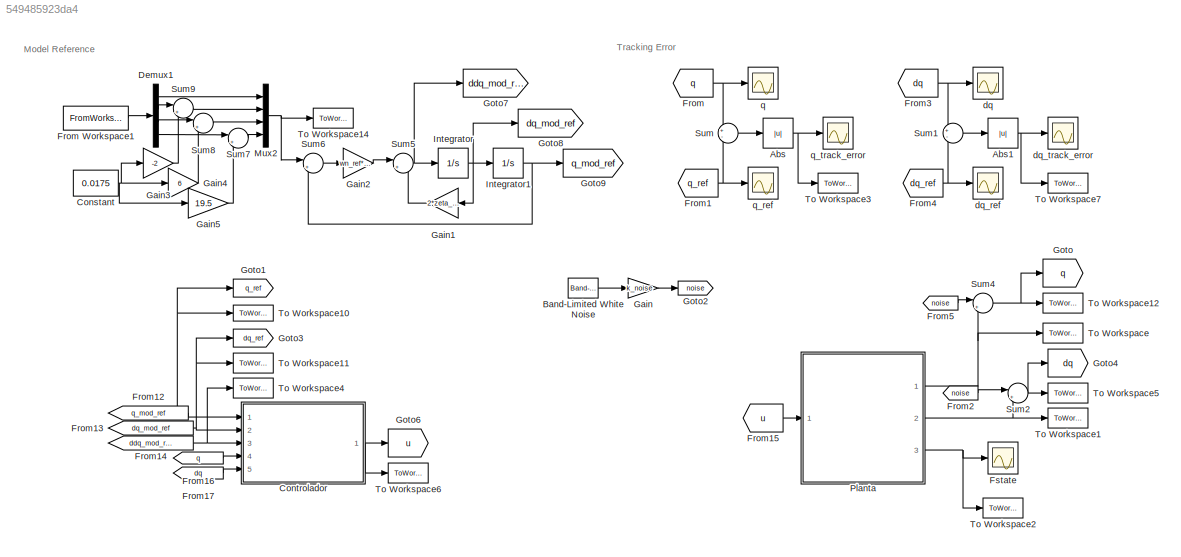
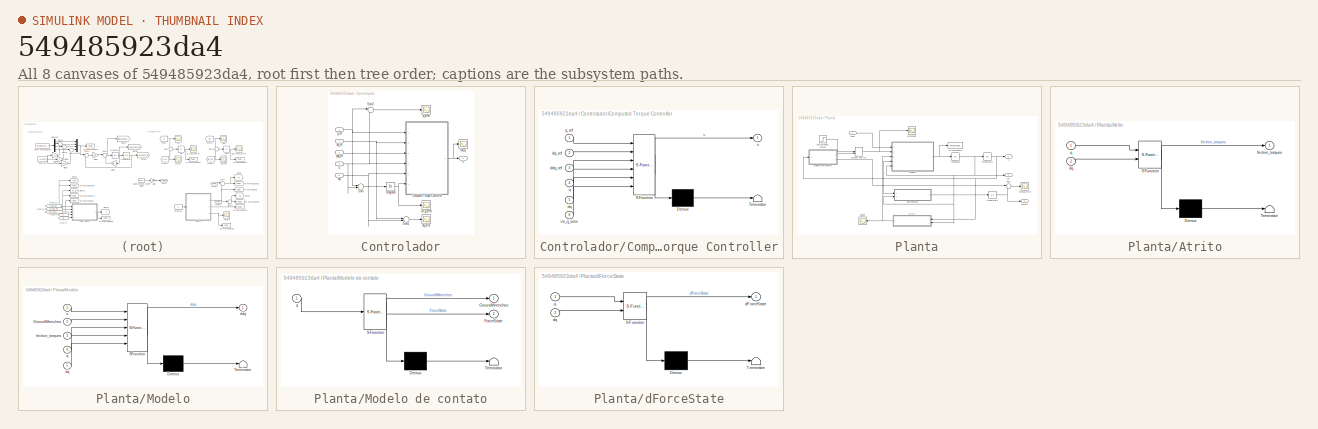
[diagram: thumbnail index - all 8 canvases of the model, root first then tree order]
MODEL slx_549485923da4
KIND model
CONFIG AbsTol = auto
CONFIG EnableMultiTasking = on
CONFIG FixedStep = simulation_step
CONFIG MaxStep = 1e-2
CONFIG MinStep = auto
CONFIG RelTol = 1e-3
CONFIG SampleTimeConstraint = Unconstrained
CONFIG Solver = FixedStepAuto
CONFIG SolverName = FixedStepAuto
CONFIG StartTime = 0.0
CONFIG StopTime = 1
BLOCK [Abs] Abs
  SaturateOnIntegerOverflow = off
BLOCK [Abs] Abs1
  SaturateOnIntegerOverflow = off
BLOCK [Reference] Band-Limited White Noise  REF=simulink/Sources/Band-Limited
White Noise
  Ports = [0, 1]
  SourceBlock = simulink/Sources/Band-Limited\nWhite Noise
  SourceProductBaseCode = SL
  SourceProductName = Simulink
  SourceType = Band-Limited White Noise.
BLOCK [Constant] Constant
  Value = 0.0175
BLOCK [SubSystem] Controlador
  Ports = [5, 1]
  RequestExecContextInheritance = off
  Variant = off
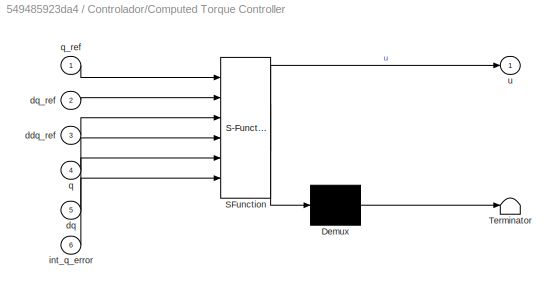
BLOCK [SubSystem] Controlador/Computed Torque Controller
  ErrorFcn = Stateflow.Translate.translate
  PermitHierarchicalResolution = ExplicitOnly
  Ports = [6, 1]
  RequestExecContextInheritance = off
  SFBlockType = MATLAB Function
  TreatAsAtomicUnit = on
  Variant = off
BLOCK [Demux] Controlador/Computed Torque Controller/ Demux 
  Outputs = 1
  Ports = [1, 1]
BLOCK [S-Function] Controlador/Computed Torque Controller/ SFunction 
  EnableBusSupport = on
  FunctionName = sf_sfun
  Parameters = G_ctrl,Inertia_ctrl,Kd,Ki,Kp,L_ctrl,Mass_ctrl,R_ctrl,h_ctrl,joint_type
  PortCounts = [6 2]
  Ports = [6, 2]
  SFcnIsStateOwnerBlock = off
  SFunctionDeploymentMode = off
  Tag = Stateflow S-Function simulation_state2017a 1
BLOCK [Terminator] Controlador/Computed Torque Controller/ Terminator 
BLOCK [Inport] Controlador/Computed Torque Controller/ddq_ref
  IconDisplay = Port number
  Port = 3
BLOCK [Inport] Controlador/Computed Torque Controller/dq
  IconDisplay = Port number
  Port = 5
BLOCK [Inport] Controlador/Computed Torque Controller/dq_ref
  IconDisplay = Port number
  Port = 2
BLOCK [Inport] Controlador/Computed Torque Controller/int_q_error
  IconDisplay = Port number
  Port = 6
BLOCK [Inport] Controlador/Computed Torque Controller/q
  IconDisplay = Port number
  Port = 4
BLOCK [Inport] Controlador/Computed Torque Controller/q_ref
  IconDisplay = Port number
BLOCK [Outport] Controlador/Computed Torque Controller/u
  IconDisplay = Port number
BLOCK [Integrator] Controlador/Integrator
  InitialCondition = zeros(4,1)
  Ports = [1, 1]
BLOCK [Sum] Controlador/Sum
  IconShape = round
  InputSameDT = off
  Inputs = |+-
  OutDataTypeStr = Inherit: Inherit via internal rule
  Ports = [2, 1]
  SaturateOnIntegerOverflow = off
BLOCK [Sum] Controlador/Sum1
  IconShape = round
  InputSameDT = off
  Inputs = |+-
  OutDataTypeStr = Inherit: Inherit via internal rule
  Ports = [2, 1]
  SaturateOnIntegerOverflow = off
BLOCK [Sum] Controlador/Sum2
  IconShape = round
  InputSameDT = off
  Inputs = |+-
  OutDataTypeStr = Inherit: Inherit via internal rule
  Ports = [2, 1]
  SaturateOnIntegerOverflow = off
BLOCK [Inport] Controlador/ddq_ref
  IconDisplay = Port number
  Port = 3
BLOCK [Inport] Controlador/dq
  IconDisplay = Port number
  Port = 5
BLOCK [Scope] Controlador/dq_error
  NumInputPorts = 1
  Ports = [1]
  ScopeSpecificationString = Simulink.scopes.TimeScopeBlockCfg('CurrentConfiguration', extmgr.ConfigurationSet(extmgr.Configuration('Core','General UI',true),extmgr.Configuration('Core','Source UI',true),extmgr.Configuration('Sources','WiredSimulink',true,'DataLoggingVariableName','ScopeData3','DataLoggingLimitDataPoints',true,'DataLoggingSaveFormat','Array','DataLoggingDecimation','1','DataLoggingDecimateData',true),extmgr.C...<+898ch>
BLOCK [Inport] Controlador/dq_ref
  IconDisplay = Port number
  Port = 2
BLOCK [Scope] Controlador/int_q_error
  NumInputPorts = 1
  Ports = [1]
  ScopeSpecificationString = Simulink.scopes.TimeScopeBlockCfg('CurrentConfiguration', extmgr.ConfigurationSet(extmgr.Configuration('Core','General UI',true),extmgr.Configuration('Core','Source UI',true),extmgr.Configuration('Sources','WiredSimulink',true,'DataLoggingVariableName','ScopeData2','DataLoggingLimitDataPoints',true,'DataLoggingSaveFormat','Array','DataLoggingDecimation','1','DataLoggingDecimateData',true),extmgr.C...<+1741ch>
BLOCK [Inport] Controlador/q
  IconDisplay = Port number
  Port = 4
BLOCK [Scope] Controlador/q_error
  NumInputPorts = 1
  Ports = [1]
  ScopeSpecificationString = Simulink.scopes.TimeScopeBlockCfg('CurrentConfiguration', extmgr.ConfigurationSet(extmgr.Configuration('Core','General UI',true),extmgr.Configuration('Core','Source UI',true),extmgr.Configuration('Sources','WiredSimulink',true,'DataLoggingVariableName','ScopeData2','DataLoggingLimitDataPoints',true,'DataLoggingSaveFormat','Array','DataLoggingDecimation','1','DataLoggingDecimateData',true),extmgr.C...<+1782ch>
BLOCK [Inport] Controlador/q_ref
  IconDisplay = Port number
BLOCK [Scope] Controlador/tau_q
  NumInputPorts = 1
  Ports = [1]
  ScopeSpecificationString = Simulink.scopes.TimeScopeBlockCfg('CurrentConfiguration', extmgr.ConfigurationSet(extmgr.Configuration('Core','General UI',true),extmgr.Configuration('Core','Source UI',true),extmgr.Configuration('Sources','WiredSimulink',true,'DataLoggingSaveFormat','Array','DataLoggingDecimation','1','DataLoggingDecimateData',true,'DataLoggingVariableName','ScopeData1'),extmgr.Configuration('Visuals','Time Domai...<+1952ch>
BLOCK [Outport] Controlador/u
  IconDisplay = Port number
BLOCK [Demux] Demux1
  DisplayOption = bar
  Ports = [1, 4]
BLOCK [From] From
  GotoTag = q
BLOCK [FromWorkspace] From Workspace1
  SampleTime = 0
  VariableName = data_steps
  ZeroCross = on
BLOCK [From] From1
  GotoTag = q_ref
BLOCK [From] From12
  GotoTag = q_mod_ref
BLOCK [From] From13
  GotoTag = dq_mod_ref
BLOCK [From] From14
  GotoTag = ddq_mod_ref
BLOCK [From] From15
  GotoTag = u
BLOCK [From] From16
  GotoTag = q
BLOCK [From] From17
  GotoTag = dq
BLOCK [From] From2
  GotoTag = noise
BLOCK [From] From3
  GotoTag = dq
BLOCK [From] From4
  GotoTag = dq_ref
BLOCK [From] From5
  GotoTag = noise
BLOCK [Scope] Fstate
  NumInputPorts = 1
  Ports = [1]
  ScopeSpecificationString = Simulink.scopes.TimeScopeBlockCfg('CurrentConfiguration', extmgr.ConfigurationSet(extmgr.Configuration('Core','General UI',true),extmgr.Configuration('Core','Source UI',true),extmgr.Configuration('Sources','WiredSimulink',true,'DataLoggingSaveFormat','Array','DataLoggingDecimation','1','DataLoggingDecimateData',true,'DataLoggingVariableName','ScopeData2'),extmgr.Configuration('Visuals','Time Domai...<+1728ch>
BLOCK [Gain] Gain
  Gain = k_noise
  OutDataTypeStr = Inherit: Inherit via internal rule
  ParamDataTypeStr = Inherit: Inherit via internal rule
  SaturateOnIntegerOverflow = off
BLOCK [Gain] Gain1
  Gain = 2*zeta_ref*wn_ref
  OutDataTypeStr = Inherit: Inherit via internal rule
  ParamDataTypeStr = Inherit: Inherit via internal rule
  SaturateOnIntegerOverflow = off
BLOCK [Gain] Gain2
  Gain = wn_ref*wn_ref
  OutDataTypeStr = Inherit: Inherit via internal rule
  ParamDataTypeStr = Inherit: Inherit via internal rule
  SaturateOnIntegerOverflow = off
BLOCK [Gain] Gain3
  Gain = -2
  OutDataTypeStr = Inherit: Inherit via internal rule
  ParamDataTypeStr = Inherit: Inherit via internal rule
  SaturateOnIntegerOverflow = off
BLOCK [Gain] Gain4
  Gain = 6
  OutDataTypeStr = Inherit: Inherit via internal rule
  ParamDataTypeStr = Inherit: Inherit via internal rule
  SaturateOnIntegerOverflow = off
BLOCK [Gain] Gain5
  Gain = 19.5
  OutDataTypeStr = Inherit: Inherit via internal rule
  ParamDataTypeStr = Inherit: Inherit via internal rule
  SaturateOnIntegerOverflow = off
BLOCK [Goto] Goto
  GotoTag = q
BLOCK [Goto] Goto1
  GotoTag = q_ref
BLOCK [Goto] Goto2
  GotoTag = noise
BLOCK [Goto] Goto3
  GotoTag = dq_ref
BLOCK [Goto] Goto4
  GotoTag = dq
BLOCK [Goto] Goto6
  GotoTag = u
BLOCK [Goto] Goto7
  GotoTag = ddq_mod_ref
BLOCK [Goto] Goto8
  GotoTag = dq_mod_ref
BLOCK [Goto] Goto9
  GotoTag = q_mod_ref
BLOCK [Integrator] Integrator
  InitialCondition = dqInit_model
  Ports = [1, 1]
BLOCK [Integrator] Integrator1
  InitialCondition = qInit_model
  Ports = [1, 1]
BLOCK [Mux] Mux2
  DisplayOption = bar
  Ports = [4, 1]
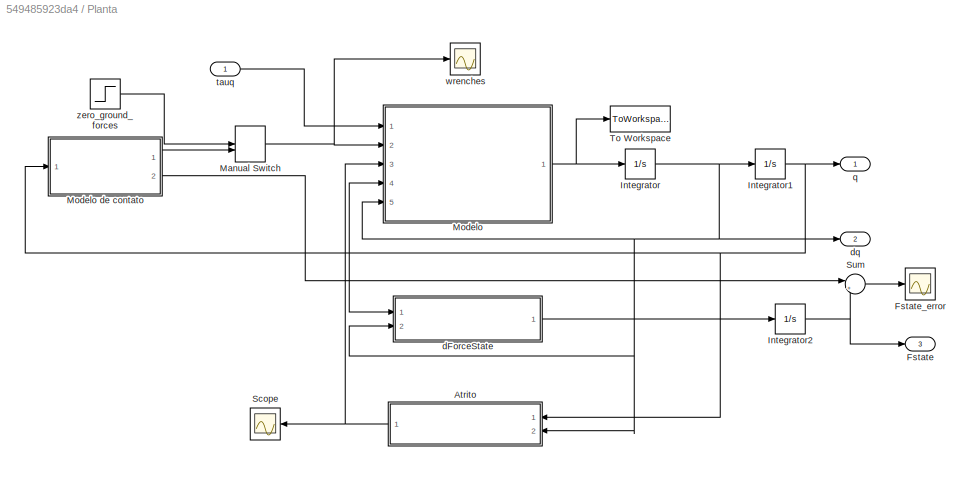
BLOCK [SubSystem] Planta
  Ports = [1, 3]
  RequestExecContextInheritance = off
  Variant = off
BLOCK [SubSystem] Planta/Atrito
  ErrorFcn = Stateflow.Translate.translate
  PermitHierarchicalResolution = ExplicitOnly
  Ports = [2, 1]
  RequestExecContextInheritance = off
  SFBlockType = MATLAB Function
  TreatAsAtomicUnit = on
  Variant = off
BLOCK [Demux] Planta/Atrito/ Demux 
  Outputs = 1
  Ports = [1, 1]
BLOCK [S-Function] Planta/Atrito/ SFunction 
  EnableBusSupport = on
  FunctionName = sf_sfun
  PortCounts = [2 2]
  Ports = [2, 2]
  SFcnIsStateOwnerBlock = off
  SFunctionDeploymentMode = off
  Tag = Stateflow S-Function simulation_state2017a 4
BLOCK [Terminator] Planta/Atrito/ Terminator 
BLOCK [Inport] Planta/Atrito/dq
  IconDisplay = Port number
  Port = 2
BLOCK [Outport] Planta/Atrito/friction_torques
  IconDisplay = Port number
BLOCK [Inport] Planta/Atrito/q
  IconDisplay = Port number
BLOCK [Outport] Planta/Fstate
  IconDisplay = Port number
  Port = 3
BLOCK [Scope] Planta/Fstate_error
  NumInputPorts = 1
  Ports = [1]
  ScopeSpecificationString = Simulink.scopes.TimeScopeBlockCfg('CurrentConfiguration', extmgr.ConfigurationSet(extmgr.Configuration('Core','General UI',true),extmgr.Configuration('Core','Source UI',true),extmgr.Configuration('Sources','WiredSimulink',true,'DataLoggingLimitDataPoints',true,'DataLoggingSaveFormat','Array','DataLoggingDecimation','1','DataLoggingDecimateData',true,'DataLoggingVariableName','ScopeData3'),extmgr.C...<+1710ch>
BLOCK [Integrator] Planta/Integrator
  InitialCondition = dqInit
  Ports = [1, 1]
BLOCK [Integrator] Planta/Integrator1
  InitialCondition = qInit
  Ports = [1, 1]
BLOCK [Integrator] Planta/Integrator2
  InitialCondition = Fstate0
  Ports = [1, 1]
BLOCK [ManualSwitch] Planta/Manual Switch
BLOCK [SubSystem] Planta/Modelo
  ErrorFcn = Stateflow.Translate.translate
  PermitHierarchicalResolution = ExplicitOnly
  Ports = [5, 1]
  RequestExecContextInheritance = off
  SFBlockType = MATLAB Function
  TreatAsAtomicUnit = on
  Variant = off
BLOCK [SubSystem] Planta/Modelo de contato
  ErrorFcn = Stateflow.Translate.translate
  PermitHierarchicalResolution = ExplicitOnly
  Ports = [1, 2]
  RequestExecContextInheritance = off
  SFBlockType = MATLAB Function
  TreatAsAtomicUnit = on
  Variant = off
BLOCK [Demux] Planta/Modelo de contato/ Demux 
  Outputs = 1
  Ports = [1, 1]
BLOCK [S-Function] Planta/Modelo de contato/ SFunction 
  EnableBusSupport = on
  FunctionName = sf_sfun
  Parameters = BodyContactPositions,L,beta,h,joint_type,k_b,s_z
  PortCounts = [1 3]
  Ports = [1, 3]
  SFcnIsStateOwnerBlock = off
  SFunctionDeploymentMode = off
  Tag = Stateflow S-Function simulation_state2017a 6
BLOCK [Terminator] Planta/Modelo de contato/ Terminator 
BLOCK [Outport] Planta/Modelo de contato/ForceState
  IconDisplay = Port number
  Port = 2
BLOCK [Outport] Planta/Modelo de contato/GroundWrenches
  IconDisplay = Port number
BLOCK [Inport] Planta/Modelo de contato/q
  IconDisplay = Port number
BLOCK [Demux] Planta/Modelo/ Demux 
  Outputs = 1
  Ports = [1, 1]
BLOCK [S-Function] Planta/Modelo/ SFunction 
  EnableBusSupport = on
  FunctionName = sf_sfun
  Parameters = BodyContact,BodyContactPositions,G,Inertia,L,Mass,R,h,joint_type
  PortCounts = [5 2]
  Ports = [5, 2]
  SFcnIsStateOwnerBlock = off
  SFunctionDeploymentMode = off
  Tag = Stateflow S-Function simulation_state2017a 2
BLOCK [Terminator] Planta/Modelo/ Terminator 
BLOCK [Inport] Planta/Modelo/GroundWrenches
  IconDisplay = Port number
  Port = 2
BLOCK [Outport] Planta/Modelo/ddq
  IconDisplay = Port number
BLOCK [Inport] Planta/Modelo/dq
  IconDisplay = Port number
  Port = 5
BLOCK [Inport] Planta/Modelo/friction_torques
  IconDisplay = Port number
  Port = 3
BLOCK [Inport] Planta/Modelo/q
  IconDisplay = Port number
  Port = 4
BLOCK [Inport] Planta/Modelo/u
  IconDisplay = Port number
BLOCK [Scope] Planta/Scope
  NumInputPorts = 1
  Ports = [1]
  ScopeSpecificationString = Simulink.scopes.TimeScopeBlockCfg('CurrentConfiguration', extmgr.ConfigurationSet(extmgr.Configuration('Core','General UI',true),extmgr.Configuration('Core','Source UI',true),extmgr.Configuration('Sources','WiredSimulink',true,'DataLoggingVariableName','ScopeData4'),extmgr.Configuration('Visuals','Time Domain',true),extmgr.Configuration('Tools','Plot Navigation',true),extmgr.Configuration('Tools',...<+40ch>
BLOCK [Sum] Planta/Sum
  IconShape = round
  InputSameDT = off
  Inputs = |+-
  OutDataTypeStr = Inherit: Inherit via internal rule
  Ports = [2, 1]
  SaturateOnIntegerOverflow = off
BLOCK [ToWorkspace] Planta/To Workspace
  FixptAsFi = on
  MaxDataPoints = inf
  Ports = [1]
  SampleTime = -1
  Save2DSignal = 3-D array (concatenate along third dimension)
  SaveFormat = Timeseries
  VariableName = ddq
BLOCK [SubSystem] Planta/dForceState
  ErrorFcn = Stateflow.Translate.translate
  PermitHierarchicalResolution = ExplicitOnly
  Ports = [2, 1]
  RequestExecContextInheritance = off
  SFBlockType = MATLAB Function
  TreatAsAtomicUnit = on
  Variant = off
BLOCK [Demux] Planta/dForceState/ Demux 
  Outputs = 1
  Ports = [1, 1]
BLOCK [S-Function] Planta/dForceState/ SFunction 
  EnableBusSupport = on
  FunctionName = sf_sfun
  Parameters = BodyContactPositions,L,beta,h,joint_type,k_b,s_z
  PortCounts = [2 2]
  Ports = [2, 2]
  SFcnIsStateOwnerBlock = off
  SFunctionDeploymentMode = off
  Tag = Stateflow S-Function simulation_state2017a 7
BLOCK [Terminator] Planta/dForceState/ Terminator 
BLOCK [Outport] Planta/dForceState/dForceState
  IconDisplay = Port number
BLOCK [Inport] Planta/dForceState/dq
  IconDisplay = Port number
  Port = 2
BLOCK [Inport] Planta/dForceState/q
  IconDisplay = Port number
BLOCK [Outport] Planta/dq
  IconDisplay = Port number
  Port = 2
BLOCK [Outport] Planta/q
  IconDisplay = Port number
BLOCK [Inport] Planta/tauq
  IconDisplay = Port number
BLOCK [Scope] Planta/wrenches
  NumInputPorts = 1
  Ports = [1]
  ScopeSpecificationString = Simulink.scopes.TimeScopeBlockCfg('CurrentConfiguration', extmgr.ConfigurationSet(extmgr.Configuration('Core','General UI',true),extmgr.Configuration('Core','Source UI',true),extmgr.Configuration('Sources','WiredSimulink',true,'DataLoggingSaveFormat','Array','DataLoggingDecimation','1','DataLoggingDecimateData',true,'DataLoggingVariableName','ScopeData1'),extmgr.Configuration('Visuals','Time Domai...<+1905ch>
BLOCK [Step] Planta/zero_ground_forces
  After = zeros(6,2)
  Before = zeros(6,2)
  SampleTime = 0
BLOCK [Sum] Sum
  IconShape = round
  InputSameDT = off
  Inputs = +-
  OutDataTypeStr = Inherit: Inherit via internal rule
  Ports = [2, 1]
  SaturateOnIntegerOverflow = off
BLOCK [Sum] Sum1
  IconShape = round
  InputSameDT = off
  Inputs = +-
  OutDataTypeStr = Inherit: Inherit via internal rule
  Ports = [2, 1]
  SaturateOnIntegerOverflow = off
BLOCK [Sum] Sum2
  IconShape = round
  InputSameDT = off
  Inputs = |++
  OutDataTypeStr = Inherit: Inherit via internal rule
  Ports = [2, 1]
  SaturateOnIntegerOverflow = off
BLOCK [Sum] Sum4
  IconShape = round
  InputSameDT = off
  Inputs = |++
  OutDataTypeStr = Inherit: Inherit via internal rule
  Ports = [2, 1]
  SaturateOnIntegerOverflow = off
BLOCK [Sum] Sum5
  IconShape = round
  InputSameDT = off
  Inputs = |+-
  OutDataTypeStr = Inherit: Inherit via internal rule
  Ports = [2, 1]
  SaturateOnIntegerOverflow = off
BLOCK [Sum] Sum6
  IconShape = round
  InputSameDT = off
  Inputs = |+-
  OutDataTypeStr = Inherit: Inherit via internal rule
  Ports = [2, 1]
  SaturateOnIntegerOverflow = off
BLOCK [Sum] Sum7
  IconShape = round
  InputSameDT = off
  Inputs = |++
  OutDataTypeStr = Inherit: Inherit via internal rule
  Ports = [2, 1]
  SaturateOnIntegerOverflow = off
BLOCK [Sum] Sum8
  IconShape = round
  InputSameDT = off
  Inputs = |++
  OutDataTypeStr = Inherit: Inherit via internal rule
  Ports = [2, 1]
  SaturateOnIntegerOverflow = off
BLOCK [Sum] Sum9
  IconShape = round
  InputSameDT = off
  Inputs = |++
  OutDataTypeStr = Inherit: Inherit via internal rule
  Ports = [2, 1]
  SaturateOnIntegerOverflow = off
BLOCK [ToWorkspace] To Workspace
  FixptAsFi = on
  MaxDataPoints = inf
  Ports = [1]
  SampleTime = -1
  Save2DSignal = 3-D array (concatenate along third dimension)
  SaveFormat = Timeseries
  VariableName = q
BLOCK [ToWorkspace] To Workspace1
  FixptAsFi = on
  MaxDataPoints = inf
  Ports = [1]
  SampleTime = -1
  Save2DSignal = 3-D array (concatenate along third dimension)
  SaveFormat = Timeseries
  VariableName = dq
BLOCK [ToWorkspace] To Workspace10
  FixptAsFi = on
  MaxDataPoints = inf
  Ports = [1]
  SampleTime = -1
  Save2DSignal = 3-D array (concatenate along third dimension)
  SaveFormat = Timeseries
  VariableName = q_ref
BLOCK [ToWorkspace] To Workspace11
  FixptAsFi = on
  MaxDataPoints = inf
  Ports = [1]
  SampleTime = -1
  Save2DSignal = 3-D array (concatenate along third dimension)
  SaveFormat = Timeseries
  VariableName = dq_ref
BLOCK [ToWorkspace] To Workspace12
  FixptAsFi = on
  MaxDataPoints = inf
  Ports = [1]
  SampleTime = -1
  Save2DSignal = 3-D array (concatenate along third dimension)
  SaveFormat = Timeseries
  VariableName = q_noisy
BLOCK [ToWorkspace] To Workspace14
  FixptAsFi = on
  MaxDataPoints = inf
  Ports = [1]
  SampleTime = -1
  Save2DSignal = 3-D array (concatenate along third dimension)
  SaveFormat = Timeseries
  VariableName = q_raw
BLOCK [ToWorkspace] To Workspace2
  FixptAsFi = on
  MaxDataPoints = inf
  Ports = [1]
  SampleTime = -1
  Save2DSignal = 3-D array (concatenate along third dimension)
  SaveFormat = Timeseries
  VariableName = Fstate
BLOCK [ToWorkspace] To Workspace3
  FixptAsFi = on
  MaxDataPoints = inf
  Ports = [1]
  SampleTime = -1
  Save2DSignal = 3-D array (concatenate along third dimension)
  SaveFormat = Timeseries
  VariableName = q_error
BLOCK [ToWorkspace] To Workspace4
  FixptAsFi = on
  MaxDataPoints = inf
  Ports = [1]
  SampleTime = -1
  Save2DSignal = 3-D array (concatenate along third dimension)
  SaveFormat = Timeseries
  VariableName = ddq_ref
BLOCK [ToWorkspace] To Workspace5
  FixptAsFi = on
  MaxDataPoints = inf
  Ports = [1]
  SampleTime = -1
  Save2DSignal = 3-D array (concatenate along third dimension)
  SaveFormat = Timeseries
  VariableName = dq_noisy
BLOCK [ToWorkspace] To Workspace6
  FixptAsFi = on
  MaxDataPoints = inf
  Ports = [1]
  SampleTime = -1
  Save2DSignal = 3-D array (concatenate along third dimension)
  SaveFormat = Timeseries
  VariableName = u
BLOCK [ToWorkspace] To Workspace7
  FixptAsFi = on
  MaxDataPoints = inf
  Ports = [1]
  SampleTime = -1
  Save2DSignal = 3-D array (concatenate along third dimension)
  SaveFormat = Timeseries
  VariableName = dq_error
BLOCK [Scope] dq
  NumInputPorts = 1
  Ports = [1]
  ScopeSpecificationString = Simulink.scopes.TimeScopeBlockCfg('CurrentConfiguration', extmgr.ConfigurationSet(extmgr.Configuration('Core','General UI',true),extmgr.Configuration('Core','Source UI',true),extmgr.Configuration('Sources','WiredSimulink',true,'DataLoggingSaveFormat','Array','DataLoggingDecimation','1','DataLoggingDecimateData',true,'DataLoggingVariableName','ScopeData7'),extmgr.Configuration('Visuals','Time Domai...<+1772ch>
BLOCK [Scope] dq_ref
  NumInputPorts = 1
  Ports = [1]
  ScopeSpecificationString = Simulink.scopes.TimeScopeBlockCfg('CurrentConfiguration', extmgr.ConfigurationSet(extmgr.Configuration('Core','General UI',true),extmgr.Configuration('Core','Source UI',true),extmgr.Configuration('Sources','WiredSimulink',true,'DataLoggingSaveFormat','Array','DataLoggingDecimation','1','DataLoggingDecimateData',true,'DataLoggingVariableName','ScopeData9'),extmgr.Configuration('Visuals','Time Domai...<+1762ch>
BLOCK [Scope] dq_track_error
  NumInputPorts = 1
  Ports = [1]
  ScopeSpecificationString = Simulink.scopes.TimeScopeBlockCfg('CurrentConfiguration', extmgr.ConfigurationSet(extmgr.Configuration('Core','General UI',true),extmgr.Configuration('Core','Source UI',true),extmgr.Configuration('Sources','WiredSimulink',true,'DataLoggingSaveFormat','Array','DataLoggingDecimation','1','DataLoggingDecimateData',true,'DataLoggingVariableName','ScopeData8'),extmgr.Configuration('Visuals','Time Domai...<+1757ch>
BLOCK [Scope] q
  NumInputPorts = 1
  Ports = [1]
  ScopeSpecificationString = Simulink.scopes.TimeScopeBlockCfg('CurrentConfiguration', extmgr.ConfigurationSet(extmgr.Configuration('Core','General UI',true),extmgr.Configuration('Core','Source UI',true),extmgr.Configuration('Sources','WiredSimulink',true,'DataLoggingSaveFormat','Array','DataLoggingDecimation','1','DataLoggingDecimateData',true,'DataLoggingVariableName','ScopeData6'),extmgr.Configuration('Visuals','Time Domai...<+1846ch>
BLOCK [Scope] q_ref
  NumInputPorts = 1
  Ports = [1]
  ScopeSpecificationString = Simulink.scopes.TimeScopeBlockCfg('CurrentConfiguration', extmgr.ConfigurationSet(extmgr.Configuration('Core','General UI',true),extmgr.Configuration('Core','Source UI',true),extmgr.Configuration('Sources','WiredSimulink',true,'DataLoggingSaveFormat','Array','DataLoggingDecimation','1','DataLoggingDecimateData',true,'DataLoggingVariableName','ScopeData1'),extmgr.Configuration('Visuals','Time Domai...<+1757ch>
BLOCK [Scope] q_track_error
  NumInputPorts = 1
  Ports = [1]
  ScopeSpecificationString = Simulink.scopes.TimeScopeBlockCfg('CurrentConfiguration', extmgr.ConfigurationSet(extmgr.Configuration('Core','General UI',true),extmgr.Configuration('Core','Source UI',true),extmgr.Configuration('Sources','WiredSimulink',true,'DataLoggingSaveFormat','Array','DataLoggingDecimation','1','DataLoggingDecimateData',true,'DataLoggingVariableName','ScopeData5'),extmgr.Configuration('Visuals','Time Domai...<+1842ch>
ANNOTATION (root): Model Reference
ANNOTATION (root): Tracking Error
NET Abs1:1 -> To Workspace7:1, dq_track_error:1
NET Abs:1 -> To Workspace3:1, q_track_error:1
LINE Band-Limited White Noise:1 -> Gain:1
NET Constant:1 -> Gain3:1, Gain4:1, Gain5:1
NET Controlador/Computed Torque Controller:1 -> Controlador/tau_q:1, Controlador/u:1
NET Controlador/Integrator:1 -> Controlador/Computed Torque Controller:6, Controlador/int_q_error:1
LINE Controlador/Sum1:1 -> Controlador/dq_error:1
LINE Controlador/Sum2:1 -> Controlador/q_error:1
LINE Controlador/Sum:1 -> Controlador/Integrator:1
LINE Controlador/ddq_ref:1 -> Controlador/Computed Torque Controller:3
NET Controlador/dq:1 -> Controlador/Computed Torque Controller:5, Controlador/Sum1:2
NET Controlador/dq_ref:1 -> Controlador/Computed Torque Controller:2, Controlador/Sum1:1
NET Controlador/q:1 -> Controlador/Computed Torque Controller:4, Controlador/Sum2:2, Controlador/Sum:2
NET Controlador/q_ref:1 -> Controlador/Computed Torque Controller:1, Controlador/Sum2:1, Controlador/Sum:1
NET Controlador:1 -> Goto6:1, To Workspace6:1
LINE Demux1:1 -> Mux2:1
LINE Demux1:2 -> Sum9:1
LINE Demux1:3 -> Sum8:1
LINE Demux1:4 -> Sum7:1
LINE From Workspace1:1 -> Demux1:1
NET From12:1 -> Controlador:1, Goto1:1, To Workspace10:1
NET From13:1 -> Controlador:2, Goto3:1, To Workspace11:1
NET From14:1 -> Controlador:3, To Workspace4:1
LINE From15:1 -> Planta:1
LINE From16:1 -> Controlador:4
LINE From17:1 -> Controlador:5
NET From1:1 -> Sum:2, q_ref:1
LINE From2:1 -> Sum2:1
NET From3:1 -> Sum1:1, dq:1
NET From4:1 -> Sum1:2, dq_ref:1
LINE From5:1 -> Sum4:1
NET From:1 -> Sum:1, q:1
LINE Gain1:1 -> Sum5:2
LINE Gain2:1 -> Sum5:1
LINE Gain3:1 -> Sum9:2
LINE Gain4:1 -> Sum8:2
LINE Gain5:1 -> Sum7:2
LINE Gain:1 -> Goto2:1
NET Integrator1:1 -> Goto9:1, Sum6:2
NET Integrator:1 -> Gain1:1, Goto8:1, Integrator1:1
NET Mux2:1 -> Sum6:1, To Workspace14:1
NET Planta/Atrito:1 -> Planta/Modelo:3, Planta/Scope:1
NET Planta/Integrator1:1 -> Planta/Atrito:1, Planta/Modelo de contato:1, Planta/Modelo:4, Planta/dForceState:1, Planta/q:1
NET Planta/Integrator2:1 -> Planta/Fstate:1, Planta/Sum:2
NET Planta/Integrator:1 -> Planta/Atrito:2, Planta/Integrator1:1, Planta/Modelo:5, Planta/dForceState:2, Planta/dq:1
NET Planta/Manual Switch:1 -> Planta/Modelo:2, Planta/wrenches:1
LINE Planta/Modelo de contato:1 -> Planta/Manual Switch:2
LINE Planta/Modelo de contato:2 -> Planta/Sum:1
NET Planta/Modelo:1 -> Planta/Integrator:1, Planta/To Workspace:1
LINE Planta/Sum:1 -> Planta/Fstate_error:1
LINE Planta/dForceState:1 -> Planta/Integrator2:1
LINE Planta/tauq:1 -> Planta/Modelo:1
LINE Planta/zero_ground_forces:1 -> Planta/Manual Switch:1
NET Planta:1 -> Sum4:2, To Workspace:1
NET Planta:2 -> Sum2:2, To Workspace1:1
NET Planta:3 -> Fstate:1, To Workspace2:1
LINE Sum1:1 -> Abs1:1
NET Sum2:1 -> Goto4:1, To Workspace5:1
NET Sum4:1 -> Goto:1, To Workspace12:1
NET Sum5:1 -> Goto7:1, Integrator:1
LINE Sum6:1 -> Gain2:1
LINE Sum7:1 -> Mux2:4
LINE Sum8:1 -> Mux2:3
LINE Sum9:1 -> Mux2:2
LINE Sum:1 -> Abs:1
note: NET lines group one-source signal fan-out (src -> all destinations, sorted); 1:1 wires keep LINE
CHART Controlador/Computed Torque Controller states=1 transitions=1
  STATE_LABEL 'eML_blk_kernel()'
  STATE_LABEL 'SCRIPT:\nfunction u = fcn(q_ref, dq_ref, ddq_ref, q, dq, int_q_error, joint_type, Mass_ctrl, Inertia_ctrl, R_ctrl, L_ctrl, h_ctrl, G_ctrl, Kp, Kd, Ki )\n%% Prostectics control\n\nv = ddq_ref + Kd*(dq_ref - dq) + Kp*(q_ref - q) + Ki*int_q_error;\nu = prosthetics_inverse_dynamics( q, dq, v, joint_type, Mass_ctrl, Inertia_ctrl, R_ctrl, L_ctrl, h_ctrl, G_ctrl );'
CHART Planta/Modelo states=1 transitions=1
  STATE_LABEL 'eML_blk_kernel()'
  STATE_LABEL "SCRIPT:\nfunction ddq = fcn( u, GroundWrenches, friction_torques, q, dq, joint_type, Mass, Inertia, R, L, h, G, BodyContactPositions,  BodyContact )\n% direct dynamics\n\n% n = length(q);\n\n% coder.extrinsic('model_prosthetics_mex');\n% ddq = coder.nullcopy(zeros(n,1));\n% Friction_torques = coder.nullcopy(zeros(n,1));\n\nddq = model_prosthetics( u, q, dq, joint_type, Mass, Inertia, R, L, h, G, friction_to...<+213ch>"
CHART Planta/Atrito states=1 transitions=1
  STATE_LABEL 'eML_blk_kernel()'
  STATE_LABEL 'SCRIPT:\nfunction friction_torques = fcn( q, dq )\n%% Joint friction model\nn = length(q);\nfriction_torques = zeros(n,1);'
CHART Planta/Modelo de contato states=1 transitions=1
  STATE_LABEL 'eML_blk_kernel()'
  STATE_LABEL 'SCRIPT:\nfunction [ GroundWrenches, ForceState ] = fcn( q, BodyContactPositions, s_z, L, h, beta,  k_b, joint_type )\n% function BodyContactWrenches = fcn( t, q, L, h, BodyContactPositions, joint_type, sz, beta, kb)\n% Esta função calcula as forças de contato com o chão\n\n[ GroundWrenches, ForceState ] = ground_model( q, BodyContactPositions, s_z, L, h, beta,  k_b, joint_type );'
CHART Planta/dForceState states=1 transitions=1
  STATE_LABEL 'eML_blk_kernel()'
  STATE_LABEL 'SCRIPT:\nfunction dForceState = fcn( q, dq, L, h, joint_type,  BodyContactPositions, s_z, beta, k_b)\n%% Dinâmica do modelo de contato (em coordenadas inerciais)\n\n%% Computes the velocity body twist of the given point.\nbody = 4;\ncontact_point_h = BodyContactPositions(:,1);\ncontact_point_t = BodyContactPositions(:,2);\nV_h = prosthetics_diff_kinematics( q, dq, L, h, body, contact_point_h, joint_type )...<+614ch>'
